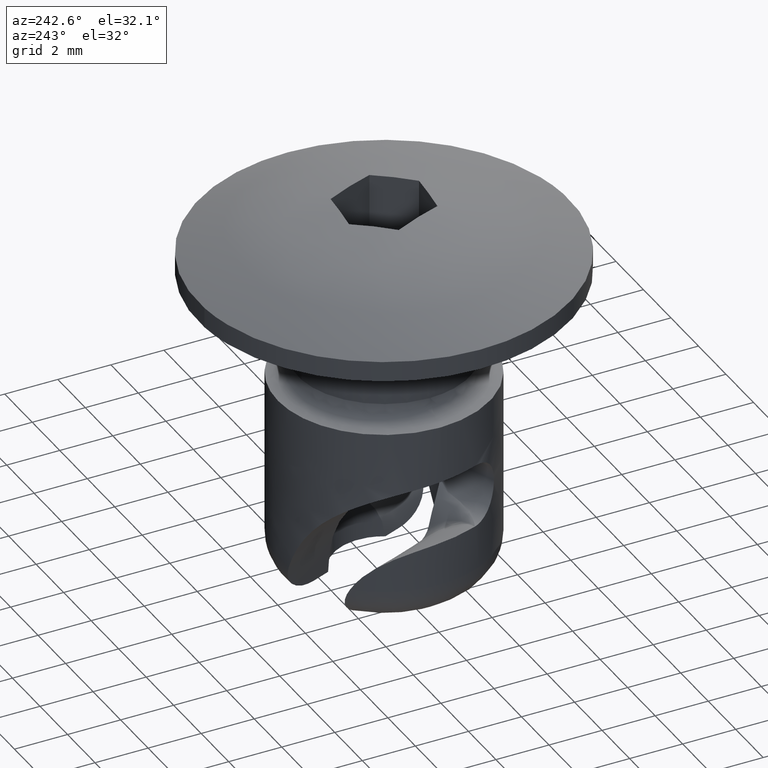
[diagram: clean part render]
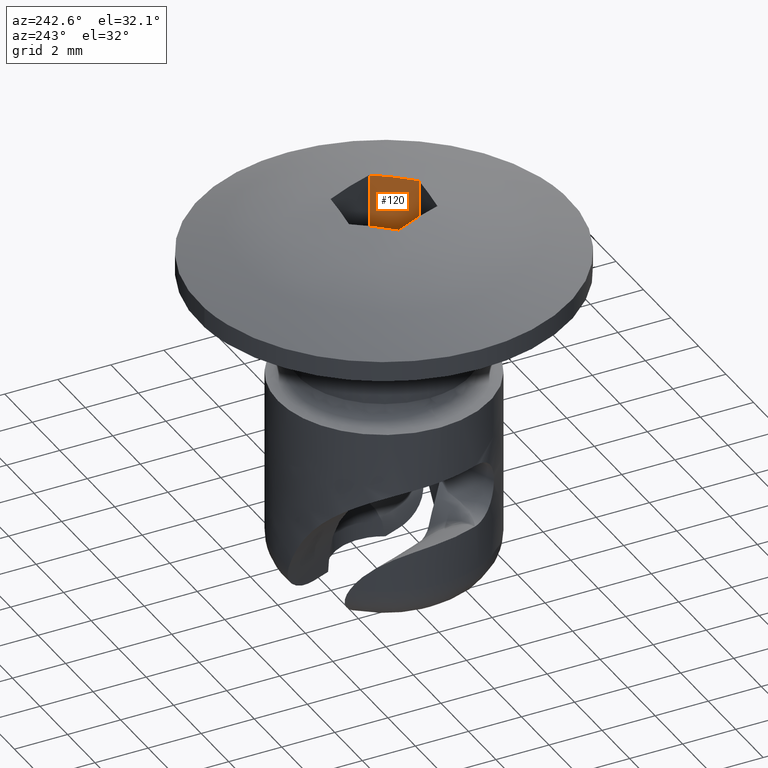
[diagram: same view with one face highlighted and labeled with its STEP entity id]
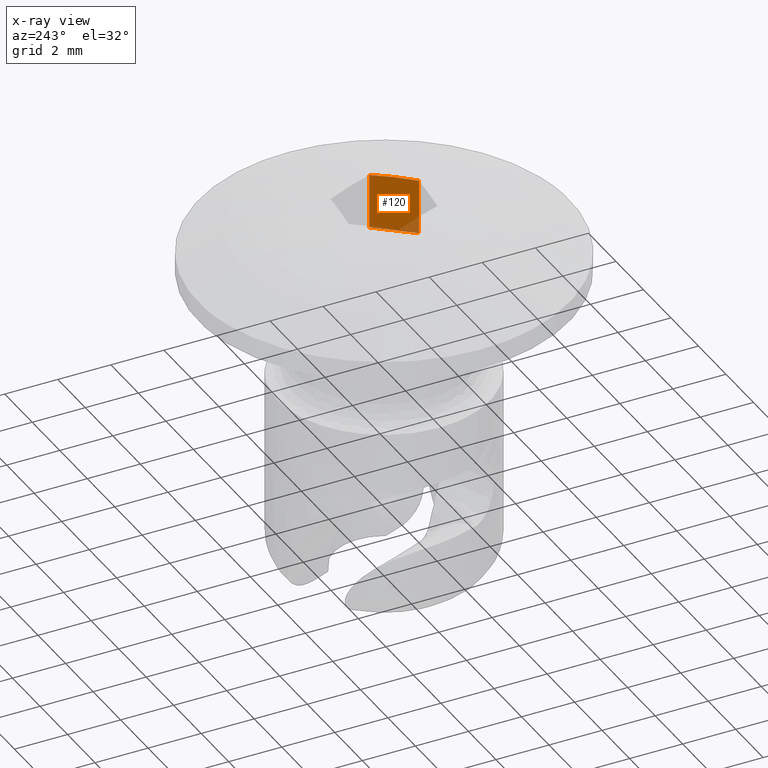
[diagram: x-ray of the same camera — body ghosted, the highlighted face saturated]
A machine part, auxiliary view. The second image highlights one B-rep face of the part: STEP entity #120.
The next image is the same camera in x-ray: the body ghosted, the highlighted face saturated — about 8% of this face is hidden behind the body in this view.
In plain terms, the highlighted face is a freeform B-spline surface patch.
Its self-contained STEP definition (entity closure, byte-faithful):
#33=CARTESIAN_POINT('',(0.674300932120085,-1.668936240449005,8.258264999999859));
#34=VERTEX_POINT('',#33);
#40=CARTESIAN_POINT('',(1.763513492046960,-0.360631526051891,8.258264999999859));
#41=VERTEX_POINT('',#40);
#42=CARTESIAN_POINT('',(0.674300932120085,-1.668936240449005,8.258264999999859));
#43=CARTESIAN_POINT('',(1.763513492046960,-0.360631526051891,8.258264999999859));
#44=QUASI_UNIFORM_CURVE('',1,(#42,#43),.UNSPECIFIED.,.F.,.U.);
#45=EDGE_CURVE('',#34,#41,#44,.T.);
#60=CARTESIAN_POINT('',(1.763513492046960,-0.360631526051891,10.333334668434420));
#61=VERTEX_POINT('',#60);
#83=CARTESIAN_POINT('',(1.763513492046960,-0.360631526051891,10.333334668434420));
#84=CARTESIAN_POINT('',(1.763513492046960,-0.360631526051891,8.258264999999859));
#85=QUASI_UNIFORM_CURVE('',1,(#83,#84),.UNSPECIFIED.,.F.,.U.);
#86=EDGE_CURVE('',#61,#41,#85,.T.);
#91=CARTESIAN_POINT('',(1.817919657304202,-0.295281708103503,8.153214637365762));
#92=CARTESIAN_POINT('',(0.619894737647886,-1.734286093488859,8.153214637365762));
#93=CARTESIAN_POINT('',(1.817919657304202,-0.295281708103503,10.466425863695081));
#94=CARTESIAN_POINT('',(0.619894737647886,-1.734286093488859,10.466425863695081));
#95=B_SPLINE_SURFACE_WITH_KNOTS('',1,1,((#91,#93),(#92,#94)),.UNSPECIFIED.,.F.,.F.,.U.,(2,2),(2,2),(0.0,1.872430861013515),(0.0,2.313211226329313),.UNSPECIFIED.);
#96=CARTESIAN_POINT('',(0.674300932120085,-1.668936240449005,10.333334693836520));
#97=VERTEX_POINT('',#96);
#98=CARTESIAN_POINT('',(0.674300932120086,-1.668936240449003,10.333334693836511));
#99=CARTESIAN_POINT('',(1.218907212619530,-1.014783882606622,10.389477137428008));
#100=CARTESIAN_POINT('',(1.763513492046960,-0.360631526051890,10.333334668434411));
#108=(BOUNDED_CURVE()B_SPLINE_CURVE(2,(#98,#99,#100),.UNSPECIFIED.,.F.,.U.)CURVE()GEOMETRIC_REPRESENTATION_ITEM()QUASI_UNIFORM_CURVE()RATIONAL_B_SPLINE_CURVE((1.0,0.997831829504810,1.0))REPRESENTATION_ITEM(''));
#109=EDGE_CURVE('',#97,#61,#108,.T.);
#110=ORIENTED_EDGE('',*,*,#109,.T.);
#111=ORIENTED_EDGE('',*,*,#86,.T.);
#112=ORIENTED_EDGE('',*,*,#45,.F.);
#113=CARTESIAN_POINT('',(0.674300932120085,-1.668936240449005,10.333334693836520));
#114=CARTESIAN_POINT('',(0.674300932120085,-1.668936240449005,8.258264999999859));
#115=QUASI_UNIFORM_CURVE('',1,(#113,#114),.UNSPECIFIED.,.F.,.U.);
#116=EDGE_CURVE('',#97,#34,#115,.T.);
#117=ORIENTED_EDGE('',*,*,#116,.F.);
#118=EDGE_LOOP('',(#110,#111,#112,#117));
#119=FACE_OUTER_BOUND('',#118,.T.);
#120=ADVANCED_FACE('',(#119),#95,.T.);